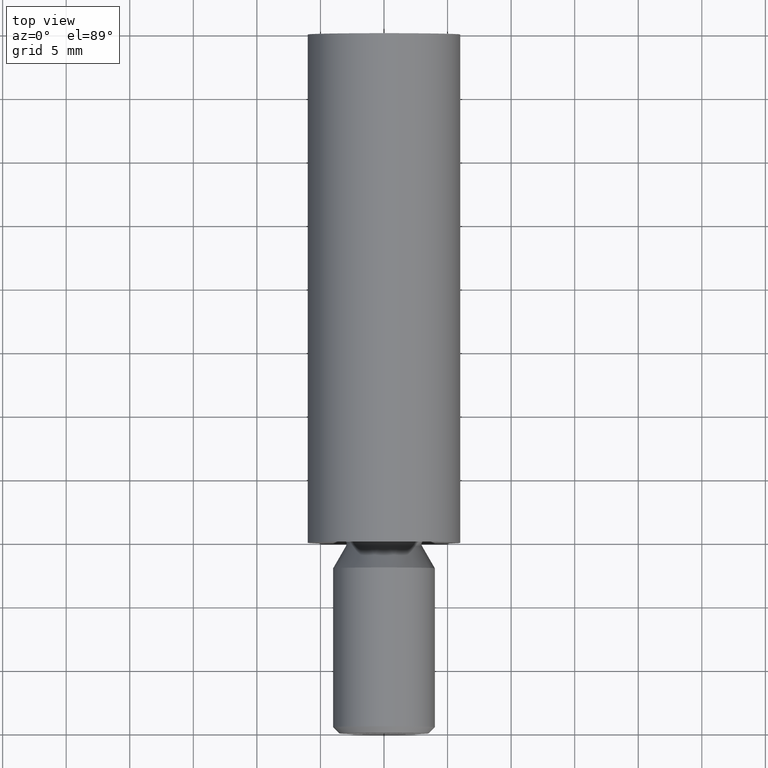
[diagram: clean part render]
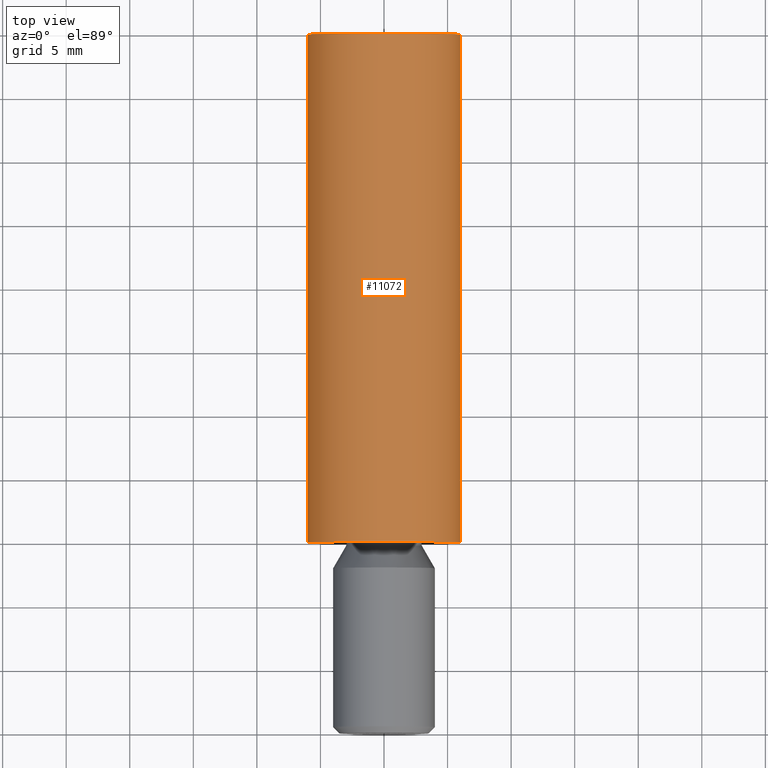
[diagram: same view with one face highlighted and labeled with its STEP entity id]
A machine part, top view. The second image highlights one B-rep face of the part: STEP entity #11072.
In plain terms, the highlighted cylindrical surface (bore or boss wall) has radius 6 mm, axis along (0, -1, -0).
Its self-contained STEP definition (entity closure, byte-faithful):
#63 = FACE_OUTER_BOUND ( 'NONE', #240, .T. ) ;
#166 = ORIENTED_EDGE ( 'NONE', *, *, #11401, .F. ) ;
#240 = EDGE_LOOP ( 'NONE', ( #166 ) ) ;
#601 = DIRECTION ( 'NONE',  ( 1.000000000000000000, 0.000000000000000000, 0.000000000000000000 ) ) ;
#1367 = EDGE_CURVE ( 'NONE', #3973, #3973, #3351, .T. ) ;
#1695 = CYLINDRICAL_SURFACE ( 'NONE', #4095, 6.000000000000007994 ) ;
#1940 = AXIS2_PLACEMENT_3D ( 'NONE', #5316, #9478, #8456 ) ;
#2608 = DIRECTION ( 'NONE',  ( 3.501690807976792771E-33, -1.000000000000000000, -0.000000000000000000 ) ) ;
#2841 = FACE_OUTER_BOUND ( 'NONE', #2918, .T. ) ;
#2918 = EDGE_LOOP ( 'NONE', ( #6584 ) ) ;
#3351 = CIRCLE ( 'NONE', #12670, 6.000000000000006217 ) ;
#3973 = VERTEX_POINT ( 'NONE', #12072 ) ;
#4090 = CARTESIAN_POINT ( 'NONE',  ( 1.925929944387235853E-31, -15.00000000000000000, 0.000000000000000000 ) ) ;
#4095 = AXIS2_PLACEMENT_3D ( 'NONE', #4090, #9327, #6177 ) ;
#5316 = CARTESIAN_POINT ( 'NONE',  ( 1.400676323190716944E-31, 0.000000000000000000, 0.000000000000000000 ) ) ;
#5886 = CARTESIAN_POINT ( 'NONE',  ( 6.000000000000009770, 2.101014484786079084E-32, 0.000000000000000000 ) ) ;
#6177 = DIRECTION ( 'NONE',  ( 1.000000000000000000, 0.000000000000000000, 0.000000000000000000 ) ) ;
#6584 = ORIENTED_EDGE ( 'NONE', *, *, #1367, .T. ) ;
#8456 = DIRECTION ( 'NONE',  ( 1.000000000000000000, 3.501690807976792771E-33, 0.000000000000000000 ) ) ;
#8664 = CIRCLE ( 'NONE', #1940, 6.000000000000009770 ) ;
#9327 = DIRECTION ( 'NONE',  ( 3.501690807976792771E-33, -1.000000000000000000, -0.000000000000000000 ) ) ;
#9478 = DIRECTION ( 'NONE',  ( 3.501690807976792771E-33, -1.000000000000000000, -0.000000000000000000 ) ) ;
#11072 = ADVANCED_FACE ( 'NONE', ( #2841, #63 ), #1695, .T. ) ;
#11401 = EDGE_CURVE ( 'NONE', #12735, #12735, #8664, .T. ) ;
#12072 = CARTESIAN_POINT ( 'NONE',  ( 6.000000000000006217, 40.00000000000000000, 0.000000000000000000 ) ) ;
#12670 = AXIS2_PLACEMENT_3D ( 'NONE', #13253, #2608, #601 ) ;
#12735 = VERTEX_POINT ( 'NONE', #5886 ) ;
#13253 = CARTESIAN_POINT ( 'NONE',  ( 0.000000000000000000, 40.00000000000000000, 0.000000000000000000 ) ) ;